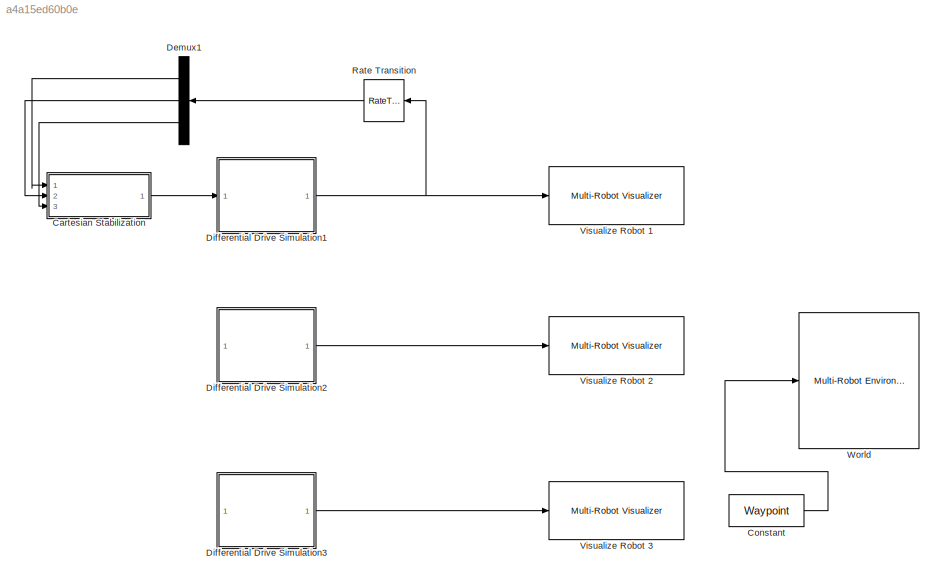
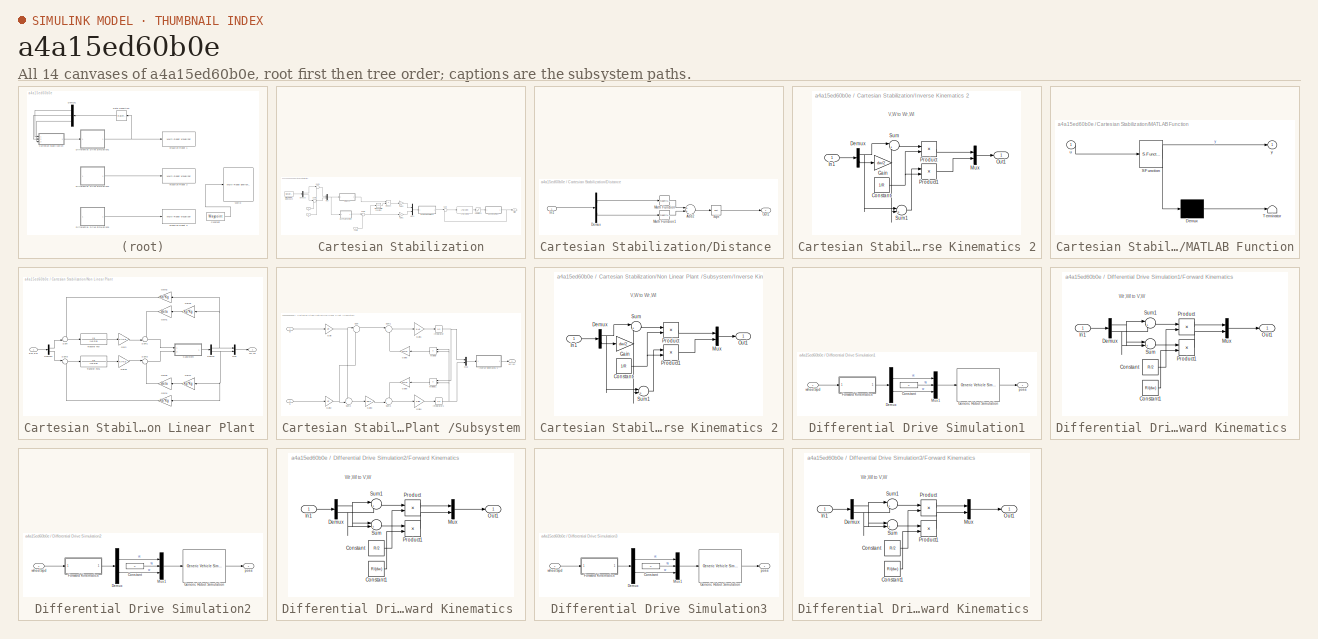
[diagram: thumbnail index - all 14 canvases of the model, root first then tree order]
MODEL slx_a4a15ed60b0e
KIND model
CONFIG AbsTol = auto
CONFIG EnableMultiTasking = off
CONFIG FixedStep = sampleTime
CONFIG MaxStep = auto
CONFIG MinStep = auto
CONFIG PreLoadFcn = % Simulation parameters\nload exampleMap\nsampleTime = 0.05;\n\n% Robot parameters\nwheelRadius = 0.025;\nrobotRadius = 0.35;\n\n% Lidar parameters\nsensorOffset = [0,0];\nscanAngles = linspace(-pi/2,pi/2,9)';\nmaxRange = 5;
CONFIG RelTol = 1e-3
CONFIG SampleTimeConstraint = Unconstrained
CONFIG Solver = VariableStepAuto
CONFIG SolverName = VariableStepAuto
CONFIG StartTime = 0.0
CONFIG StopTime = inf
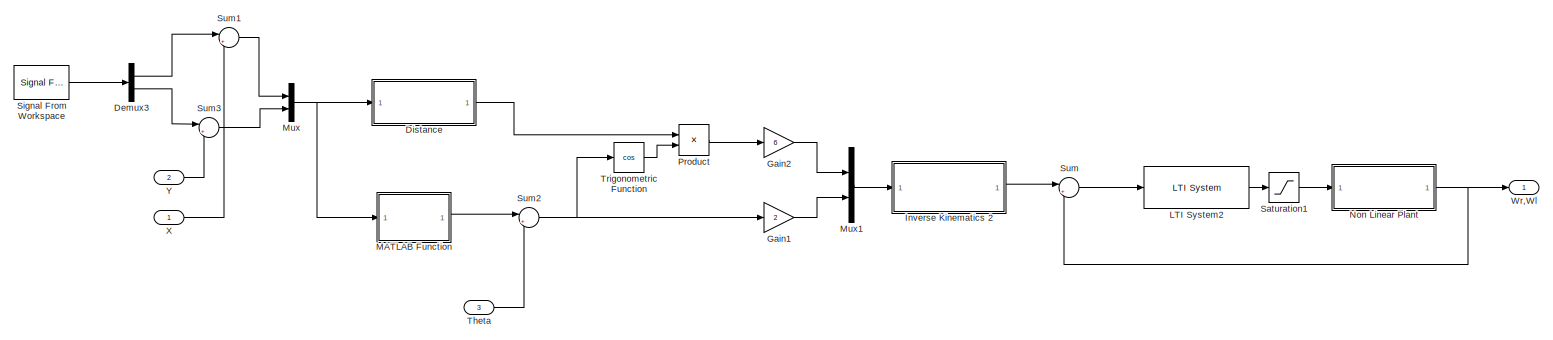
[diagram: Cartesian Stabilization - part 1/1, most of the canvas]
BLOCK [SubSystem] Cartesian Stabilization
  Ports = [3, 1]
  RequestExecContextInheritance = off
BLOCK [Demux] Cartesian Stabilization/Demux3
  DisplayOption = bar
  Outputs = 2
  Ports = [1, 2]
BLOCK [SubSystem] Cartesian Stabilization/Distance 
  Ports = [1, 1]
  RequestExecContextInheritance = off
BLOCK [Sum] Cartesian Stabilization/Distance /Add2
  InputSameDT = off
  OutDataTypeStr = Inherit: Inherit via internal rule
  Ports = [2, 1]
  SaturateOnIntegerOverflow = off
BLOCK [Demux] Cartesian Stabilization/Distance /Demux
  DisplayOption = bar
  Outputs = 2
  Ports = [1, 2]
BLOCK [Inport] Cartesian Stabilization/Distance /In1
  IconDisplay = Port number
BLOCK [Math] Cartesian Stabilization/Distance /Math Function
  Operator = magnitude^2
  Ports = [1, 1]
BLOCK [Math] Cartesian Stabilization/Distance /Math Function1
  Operator = magnitude^2
  Ports = [1, 1]
BLOCK [Outport] Cartesian Stabilization/Distance /Out1
  IconDisplay = Port number
BLOCK [Sqrt] Cartesian Stabilization/Distance /Sqrt
BLOCK [Gain] Cartesian Stabilization/Gain1
  Gain = 2
  OutDataTypeStr = Inherit: Inherit via internal rule
  ParamDataTypeStr = Inherit: Inherit via internal rule
  SaturateOnIntegerOverflow = off
BLOCK [Gain] Cartesian Stabilization/Gain2
  Gain = 6
  OutDataTypeStr = Inherit: Inherit via internal rule
  ParamDataTypeStr = Inherit: Inherit via internal rule
  SaturateOnIntegerOverflow = off
BLOCK [SubSystem] Cartesian Stabilization/Inverse Kinematics 2
  Ports = [1, 1]
  RequestExecContextInheritance = off
BLOCK [Constant] Cartesian Stabilization/Inverse Kinematics 2/Constant
  Value = 1/R
BLOCK [Demux] Cartesian Stabilization/Inverse Kinematics 2/Demux
  DisplayOption = bar
  Outputs = 2
  Ports = [1, 2]
BLOCK [Gain] Cartesian Stabilization/Inverse Kinematics 2/Gain
  Gain = dw/2
  OutDataTypeStr = Inherit: Inherit via internal rule
  ParamDataTypeStr = Inherit: Inherit via internal rule
  SaturateOnIntegerOverflow = off
BLOCK [Inport] Cartesian Stabilization/Inverse Kinematics 2/In1
  IconDisplay = Port number
BLOCK [Mux] Cartesian Stabilization/Inverse Kinematics 2/Mux
  DisplayOption = bar
  Inputs = 2
  Ports = [2, 1]
BLOCK [Outport] Cartesian Stabilization/Inverse Kinematics 2/Out1
  IconDisplay = Port number
BLOCK [Product] Cartesian Stabilization/Inverse Kinematics 2/Product
  InputSameDT = off
  OutDataTypeStr = Inherit: Inherit via internal rule
  Ports = [2, 1]
  RndMeth = Floor
  SaturateOnIntegerOverflow = off
BLOCK [Product] Cartesian Stabilization/Inverse Kinematics 2/Product1
  InputSameDT = off
  OutDataTypeStr = Inherit: Inherit via internal rule
  Ports = [2, 1]
  RndMeth = Floor
  SaturateOnIntegerOverflow = off
BLOCK [Sum] Cartesian Stabilization/Inverse Kinematics 2/Sum
  IconShape = round
  InputSameDT = off
  Inputs = |++
  OutDataTypeStr = Inherit: Inherit via internal rule
  Ports = [2, 1]
  SaturateOnIntegerOverflow = off
BLOCK [Sum] Cartesian Stabilization/Inverse Kinematics 2/Sum1
  IconShape = round
  InputSameDT = off
  Inputs = |+-
  OutDataTypeStr = Inherit: Inherit via internal rule
  Ports = [2, 1]
  SaturateOnIntegerOverflow = off
BLOCK [Reference] Cartesian Stabilization/LTI System2  REF=cstblocks/LTI System
  Ports = [1, 1]
  SourceBlock = cstblocks/LTI System
  SourceProductBaseCode = CT
  SourceProductName = Control System Toolbox
  SourceType = LTI Block
BLOCK [SubSystem] Cartesian Stabilization/MATLAB Function
  ErrorFcn = Stateflow.Translate.translate
  PermitHierarchicalResolution = ExplicitOnly
  Ports = [1, 1]
  RequestExecContextInheritance = off
  SFBlockType = MATLAB Function
  TreatAsAtomicUnit = on
BLOCK [Demux] Cartesian Stabilization/MATLAB Function/ Demux 
  Outputs = 1
  Ports = [1, 1]
BLOCK [S-Function] Cartesian Stabilization/MATLAB Function/ SFunction 
  EnableBusSupport = on
  FunctionName = sf_sfun
  PortCounts = [1 2]
  Ports = [1, 2]
  SFcnIsStateOwnerBlock = off
  SFunctionDeploymentMode = off
  Tag = Stateflow S-Function Multi_Robot_MPC_Adaptive 2
BLOCK [Terminator] Cartesian Stabilization/MATLAB Function/ Terminator 
BLOCK [Inport] Cartesian Stabilization/MATLAB Function/u
  IconDisplay = Port number
BLOCK [Outport] Cartesian Stabilization/MATLAB Function/y
  IconDisplay = Port number
BLOCK [Mux] Cartesian Stabilization/Mux
  DisplayOption = bar
  Inputs = 2
  Ports = [2, 1]
BLOCK [Mux] Cartesian Stabilization/Mux1
  DisplayOption = bar
  Inputs = 2
  Ports = [2, 1]
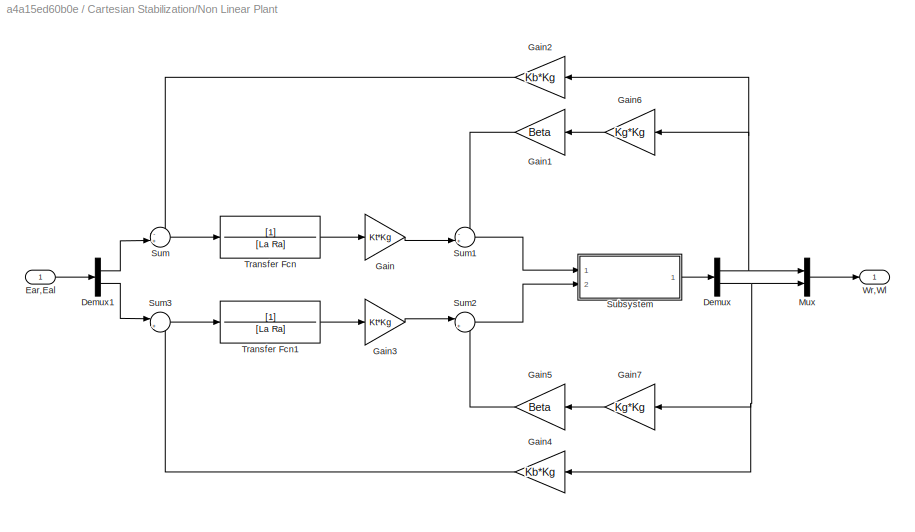
BLOCK [SubSystem] Cartesian Stabilization/Non Linear Plant 
  Ports = [1, 1]
  RequestExecContextInheritance = off
BLOCK [Demux] Cartesian Stabilization/Non Linear Plant /Demux
  DisplayOption = bar
  Outputs = 2
  Ports = [1, 2]
BLOCK [Demux] Cartesian Stabilization/Non Linear Plant /Demux1
  DisplayOption = bar
  Outputs = 2
  Ports = [1, 2]
BLOCK [Inport] Cartesian Stabilization/Non Linear Plant /Ear,Eal
  IconDisplay = Port number
BLOCK [Gain] Cartesian Stabilization/Non Linear Plant /Gain
  Gain = Kt*Kg
  OutDataTypeStr = Inherit: Inherit via internal rule
  ParamDataTypeStr = Inherit: Inherit via internal rule
  SaturateOnIntegerOverflow = off
BLOCK [Gain] Cartesian Stabilization/Non Linear Plant /Gain1
  Gain = Beta
  OutDataTypeStr = Inherit: Inherit via internal rule
  ParamDataTypeStr = Inherit: Inherit via internal rule
  SaturateOnIntegerOverflow = off
BLOCK [Gain] Cartesian Stabilization/Non Linear Plant /Gain2
  Gain = Kb*Kg
  OutDataTypeStr = Inherit: Inherit via internal rule
  ParamDataTypeStr = Inherit: Inherit via internal rule
  SaturateOnIntegerOverflow = off
BLOCK [Gain] Cartesian Stabilization/Non Linear Plant /Gain3
  Gain = Kt*Kg
  OutDataTypeStr = Inherit: Inherit via internal rule
  ParamDataTypeStr = Inherit: Inherit via internal rule
  SaturateOnIntegerOverflow = off
BLOCK [Gain] Cartesian Stabilization/Non Linear Plant /Gain4
  Gain = Kb*Kg
  OutDataTypeStr = Inherit: Inherit via internal rule
  ParamDataTypeStr = Inherit: Inherit via internal rule
  SaturateOnIntegerOverflow = off
BLOCK [Gain] Cartesian Stabilization/Non Linear Plant /Gain5
  Gain = Beta
  OutDataTypeStr = Inherit: Inherit via internal rule
  ParamDataTypeStr = Inherit: Inherit via internal rule
  SaturateOnIntegerOverflow = off
BLOCK [Gain] Cartesian Stabilization/Non Linear Plant /Gain6
  Gain = Kg*Kg
  OutDataTypeStr = Inherit: Inherit via internal rule
  ParamDataTypeStr = Inherit: Inherit via internal rule
  SaturateOnIntegerOverflow = off
BLOCK [Gain] Cartesian Stabilization/Non Linear Plant /Gain7
  Gain = Kg*Kg
  OutDataTypeStr = Inherit: Inherit via internal rule
  ParamDataTypeStr = Inherit: Inherit via internal rule
  SaturateOnIntegerOverflow = off
BLOCK [Mux] Cartesian Stabilization/Non Linear Plant /Mux
  DisplayOption = bar
  Inputs = 2
  Ports = [2, 1]
BLOCK [SubSystem] Cartesian Stabilization/Non Linear Plant /Subsystem
  Ports = [2, 1]
  RequestExecContextInheritance = off
BLOCK [Gain] Cartesian Stabilization/Non Linear Plant /Subsystem/Gain
  Gain = 1/R
  OutDataTypeStr = Inherit: Inherit via internal rule
  ParamDataTypeStr = Inherit: Inherit via internal rule
  SaturateOnIntegerOverflow = off
BLOCK [Gain] Cartesian Stabilization/Non Linear Plant /Subsystem/Gain1
  Gain = 1/Ad
  OutDataTypeStr = Inherit: Inherit via internal rule
  ParamDataTypeStr = Inherit: Inherit via internal rule
  SaturateOnIntegerOverflow = off
BLOCK [Gain] Cartesian Stabilization/Non Linear Plant /Subsystem/Gain2
  Gain = 1/R
  OutDataTypeStr = Inherit: Inherit via internal rule
  ParamDataTypeStr = Inherit: Inherit via internal rule
  SaturateOnIntegerOverflow = off
BLOCK [Gain] Cartesian Stabilization/Non Linear Plant /Subsystem/Gain3
  Gain = dw/2
  OutDataTypeStr = Inherit: Inherit via internal rule
  ParamDataTypeStr = Inherit: Inherit via internal rule
  SaturateOnIntegerOverflow = off
BLOCK [Gain] Cartesian Stabilization/Non Linear Plant /Subsystem/Gain4
  Gain = 1/Bd
  OutDataTypeStr = Inherit: Inherit via internal rule
  ParamDataTypeStr = Inherit: Inherit via internal rule
  SaturateOnIntegerOverflow = off
BLOCK [Gain] Cartesian Stabilization/Non Linear Plant /Subsystem/Gain5
  Gain = mc*d
  OutDataTypeStr = Inherit: Inherit via internal rule
  ParamDataTypeStr = Inherit: Inherit via internal rule
  SaturateOnIntegerOverflow = off
BLOCK [Gain] Cartesian Stabilization/Non Linear Plant /Subsystem/Gain6
  Gain = mc*d
  OutDataTypeStr = Inherit: Inherit via internal rule
  ParamDataTypeStr = Inherit: Inherit via internal rule
  SaturateOnIntegerOverflow = off
BLOCK [Integrator] Cartesian Stabilization/Non Linear Plant /Subsystem/Integrator
  Ports = [1, 1]
BLOCK [Integrator] Cartesian Stabilization/Non Linear Plant /Subsystem/Integrator1
  Ports = [1, 1]
BLOCK [SubSystem] Cartesian Stabilization/Non Linear Plant /Subsystem/Inverse Kinematics 2
  Ports = [1, 1]
  RequestExecContextInheritance = off
BLOCK [Constant] Cartesian Stabilization/Non Linear Plant /Subsystem/Inverse Kinematics 2/Constant
  Value = 1/R
BLOCK [Demux] Cartesian Stabilization/Non Linear Plant /Subsystem/Inverse Kinematics 2/Demux
  DisplayOption = bar
  Outputs = 2
  Ports = [1, 2]
BLOCK [Gain] Cartesian Stabilization/Non Linear Plant /Subsystem/Inverse Kinematics 2/Gain
  Gain = dw/2
  OutDataTypeStr = Inherit: Inherit via internal rule
  ParamDataTypeStr = Inherit: Inherit via internal rule
  SaturateOnIntegerOverflow = off
BLOCK [Inport] Cartesian Stabilization/Non Linear Plant /Subsystem/Inverse Kinematics 2/In1
  IconDisplay = Port number
BLOCK [Mux] Cartesian Stabilization/Non Linear Plant /Subsystem/Inverse Kinematics 2/Mux
  DisplayOption = bar
  Inputs = 2
  Ports = [2, 1]
BLOCK [Outport] Cartesian Stabilization/Non Linear Plant /Subsystem/Inverse Kinematics 2/Out1
  IconDisplay = Port number
BLOCK [Product] Cartesian Stabilization/Non Linear Plant /Subsystem/Inverse Kinematics 2/Product
  InputSameDT = off
  OutDataTypeStr = Inherit: Inherit via internal rule
  Ports = [2, 1]
  RndMeth = Floor
  SaturateOnIntegerOverflow = off
BLOCK [Product] Cartesian Stabilization/Non Linear Plant /Subsystem/Inverse Kinematics 2/Product1
  InputSameDT = off
  OutDataTypeStr = Inherit: Inherit via internal rule
  Ports = [2, 1]
  RndMeth = Floor
  SaturateOnIntegerOverflow = off
BLOCK [Sum] Cartesian Stabilization/Non Linear Plant /Subsystem/Inverse Kinematics 2/Sum
  IconShape = round
  InputSameDT = off
  Inputs = |++
  OutDataTypeStr = Inherit: Inherit via internal rule
  Ports = [2, 1]
  SaturateOnIntegerOverflow = off
BLOCK [Sum] Cartesian Stabilization/Non Linear Plant /Subsystem/Inverse Kinematics 2/Sum1
  IconShape = round
  InputSameDT = off
  Inputs = |+-
  OutDataTypeStr = Inherit: Inherit via internal rule
  Ports = [2, 1]
  SaturateOnIntegerOverflow = off
BLOCK [Product] Cartesian Stabilization/Non Linear Plant /Subsystem/Multiply
  InputSameDT = off
  OutDataTypeStr = Inherit: Inherit via internal rule
  Ports = [2, 1]
  RndMeth = Floor
  SaturateOnIntegerOverflow = off
BLOCK [Product] Cartesian Stabilization/Non Linear Plant /Subsystem/Multiply1
  InputSameDT = off
  OutDataTypeStr = Inherit: Inherit via internal rule
  Ports = [2, 1]
  RndMeth = Floor
  SaturateOnIntegerOverflow = off
BLOCK [Mux] Cartesian Stabilization/Non Linear Plant /Subsystem/Mux
  DisplayOption = bar
  Inputs = 2
  Ports = [2, 1]
BLOCK [Sum] Cartesian Stabilization/Non Linear Plant /Subsystem/Sum
  IconShape = round
  InputSameDT = off
  Inputs = |++
  OutDataTypeStr = Inherit: Inherit via internal rule
  Ports = [2, 1]
  SaturateOnIntegerOverflow = off
BLOCK [Sum] Cartesian Stabilization/Non Linear Plant /Subsystem/Sum1
  IconShape = round
  InputSameDT = off
  Inputs = |++
  OutDataTypeStr = Inherit: Inherit via internal rule
  Ports = [2, 1]
  SaturateOnIntegerOverflow = off
BLOCK [Sum] Cartesian Stabilization/Non Linear Plant /Subsystem/Sum2
  IconShape = round
  InputSameDT = off
  Inputs = +-|
  OutDataTypeStr = Inherit: Inherit via internal rule
  Ports = [2, 1]
  SaturateOnIntegerOverflow = off
BLOCK [Sum] Cartesian Stabilization/Non Linear Plant /Subsystem/Sum3
  IconShape = round
  InputSameDT = off
  Inputs = -+|
  OutDataTypeStr = Inherit: Inherit via internal rule
  Ports = [2, 1]
  SaturateOnIntegerOverflow = off
BLOCK [Inport] Cartesian Stabilization/Non Linear Plant /Subsystem/Tl
  IconDisplay = Port number
  Port = 2
BLOCK [Inport] Cartesian Stabilization/Non Linear Plant /Subsystem/Tr
  IconDisplay = Port number and signal name
BLOCK [Outport] Cartesian Stabilization/Non Linear Plant /Subsystem/Wr,Wl
  IconDisplay = Port number
BLOCK [Sum] Cartesian Stabilization/Non Linear Plant /Sum
  IconShape = round
  InputSameDT = off
  Inputs = -+|
  OutDataTypeStr = Inherit: Inherit via internal rule
  Ports = [2, 1]
  SaturateOnIntegerOverflow = off
BLOCK [Sum] Cartesian Stabilization/Non Linear Plant /Sum1
  IconShape = round
  InputSameDT = off
  Inputs = -+|
  OutDataTypeStr = Inherit: Inherit via internal rule
  Ports = [2, 1]
  SaturateOnIntegerOverflow = off
BLOCK [Sum] Cartesian Stabilization/Non Linear Plant /Sum2
  IconShape = round
  InputSameDT = off
  Inputs = |+-
  OutDataTypeStr = Inherit: Inherit via internal rule
  Ports = [2, 1]
  SaturateOnIntegerOverflow = off
BLOCK [Sum] Cartesian Stabilization/Non Linear Plant /Sum3
  IconShape = round
  InputSameDT = off
  Inputs = |+-
  OutDataTypeStr = Inherit: Inherit via internal rule
  Ports = [2, 1]
  SaturateOnIntegerOverflow = off
BLOCK [TransferFcn] Cartesian Stabilization/Non Linear Plant /Transfer Fcn
  Denominator = [La Ra]
BLOCK [TransferFcn] Cartesian Stabilization/Non Linear Plant /Transfer Fcn1
  Denominator = [La Ra]
BLOCK [Outport] Cartesian Stabilization/Non Linear Plant /Wr,Wl
  IconDisplay = Port number
BLOCK [Product] Cartesian Stabilization/Product
  InputSameDT = off
  OutDataTypeStr = Inherit: Inherit via internal rule
  Ports = [2, 1]
  RndMeth = Floor
  SaturateOnIntegerOverflow = off
BLOCK [Saturate] Cartesian Stabilization/Saturation1
  InputPortMap = u0
  LowerLimit = -30
  Ports = [1, 1]
  UpperLimit = 30
BLOCK [Reference] Cartesian Stabilization/Signal From Workspace  REF=dspsrcs4/Signal From
Workspace
  Ports = [0, 1]
  SourceBlock = dspsrcs4/Signal From\nWorkspace
  SourceProductBaseCode = DS
  SourceProductName = DSP System Toolbox
  SourceType = Signal From Workspace
BLOCK [Sum] Cartesian Stabilization/Sum
  IconShape = round
  InputSameDT = off
  Inputs = |+-
  OutDataTypeStr = Inherit: Inherit via internal rule
  Ports = [2, 1]
  SaturateOnIntegerOverflow = off
BLOCK [Sum] Cartesian Stabilization/Sum1
  IconShape = round
  InputSameDT = off
  Inputs = |+-
  OutDataTypeStr = Inherit: Inherit via internal rule
  Ports = [2, 1]
  SaturateOnIntegerOverflow = off
BLOCK [Sum] Cartesian Stabilization/Sum2
  IconShape = round
  InputSameDT = off
  Inputs = |+-
  OutDataTypeStr = Inherit: Inherit via internal rule
  Ports = [2, 1]
  SaturateOnIntegerOverflow = off
BLOCK [Sum] Cartesian Stabilization/Sum3
  IconShape = round
  InputSameDT = off
  Inputs = |+-
  OutDataTypeStr = Inherit: Inherit via internal rule
  Ports = [2, 1]
  SaturateOnIntegerOverflow = off
BLOCK [Inport] Cartesian Stabilization/Theta
  IconDisplay = Port number
  Port = 3
BLOCK [Trigonometry] Cartesian Stabilization/Trigonometric Function
  Operator = cos
  Ports = [1, 1]
BLOCK [Outport] Cartesian Stabilization/Wr,Wl
  IconDisplay = Port number
BLOCK [Inport] Cartesian Stabilization/X
  IconDisplay = Port number
BLOCK [Inport] Cartesian Stabilization/Y
  IconDisplay = Port number
  Port = 2
BLOCK [Constant] Constant
  SampleTime = sampleTime
  Value = Waypoint
BLOCK [Demux] Demux1
  DisplayOption = bar
  Outputs = 3
  Ports = [1, 3]
BLOCK [SubSystem] Differential Drive Simulation1
  AncestorBlock = mobileRoboticsLib/Kinematic Models/Differential Drive/Differential Drive Simulation
  OverrideUsingVariant = mode==2
  Ports = [1, 1]
  RequestExecContextInheritance = off
BLOCK [Constant] Differential Drive Simulation1/Constant
  Value = 0
BLOCK [Demux] Differential Drive Simulation1/Demux
  DisplayOption = bar
  Outputs = 2
  Ports = [1, 2]
BLOCK [SubSystem] Differential Drive Simulation1/Forward Kinematics 
  Ports = [1, 1]
  RequestExecContextInheritance = off
BLOCK [Constant] Differential Drive Simulation1/Forward Kinematics /Constant
  Value = R/2
BLOCK [Constant] Differential Drive Simulation1/Forward Kinematics /Constant1
  Value = R/(dw)
BLOCK [Demux] Differential Drive Simulation1/Forward Kinematics /Demux
  DisplayOption = bar
  Outputs = 2
  Ports = [1, 2]
BLOCK [Inport] Differential Drive Simulation1/Forward Kinematics /In1
  IconDisplay = Port number
BLOCK [Mux] Differential Drive Simulation1/Forward Kinematics /Mux
  DisplayOption = bar
  Inputs = 2
  Ports = [2, 1]
BLOCK [Outport] Differential Drive Simulation1/Forward Kinematics /Out1
  IconDisplay = Port number
BLOCK [Product] Differential Drive Simulation1/Forward Kinematics /Product
  InputSameDT = off
  OutDataTypeStr = Inherit: Inherit via internal rule
  Ports = [2, 1]
  RndMeth = Floor
  SaturateOnIntegerOverflow = off
BLOCK [Product] Differential Drive Simulation1/Forward Kinematics /Product1
  InputSameDT = off
  OutDataTypeStr = Inherit: Inherit via internal rule
  Ports = [2, 1]
  RndMeth = Floor
  SaturateOnIntegerOverflow = off
BLOCK [Sum] Differential Drive Simulation1/Forward Kinematics /Sum
  IconShape = round
  InputSameDT = off
  Inputs = |+-
  OutDataTypeStr = Inherit: Inherit via internal rule
  Ports = [2, 1]
  SaturateOnIntegerOverflow = off
BLOCK [Sum] Differential Drive Simulation1/Forward Kinematics /Sum1
  IconShape = round
  InputSameDT = off
  Inputs = |++
  OutDataTypeStr = Inherit: Inherit via internal rule
  Ports = [2, 1]
  SaturateOnIntegerOverflow = off
BLOCK [Reference] Differential Drive Simulation1/Generic Robot Simulation  REF=mobileRoboticsLib/Utilities/Generic Vehicle Simulation
  Ports = [1, 1]
  SourceBlock = mobileRoboticsLib/Utilities/Generic Vehicle Simulation
  SourceProductName = Mobile Robotics Simulation Toolbox
  SourceType = Generic Vehicle Simulation
BLOCK [Mux] Differential Drive Simulation1/Mux1
  DisplayOption = bar
  Inputs = 3
  Ports = [3, 1]
BLOCK [Outport] Differential Drive Simulation1/pose
  IconDisplay = Port number
BLOCK [Inport] Differential Drive Simulation1/wheelSpd
  IconDisplay = Port number
BLOCK [SubSystem] Differential Drive Simulation2
  AncestorBlock = mobileRoboticsLib/Kinematic Models/Differential Drive/Differential Drive Simulation
  OverrideUsingVariant = mode==2
  Ports = [1, 1]
  RequestExecContextInheritance = off
BLOCK [Constant] Differential Drive Simulation2/Constant
  Value = 0
BLOCK [Demux] Differential Drive Simulation2/Demux
  DisplayOption = bar
  Outputs = 2
  Ports = [1, 2]
BLOCK [SubSystem] Differential Drive Simulation2/Forward Kinematics 
  Ports = [1, 1]
  RequestExecContextInheritance = off
BLOCK [Constant] Differential Drive Simulation2/Forward Kinematics /Constant
  Value = R/2
BLOCK [Constant] Differential Drive Simulation2/Forward Kinematics /Constant1
  Value = R/(dw)
BLOCK [Demux] Differential Drive Simulation2/Forward Kinematics /Demux
  DisplayOption = bar
  Outputs = 2
  Ports = [1, 2]
BLOCK [Inport] Differential Drive Simulation2/Forward Kinematics /In1
  IconDisplay = Port number
BLOCK [Mux] Differential Drive Simulation2/Forward Kinematics /Mux
  DisplayOption = bar
  Inputs = 2
  Ports = [2, 1]
BLOCK [Outport] Differential Drive Simulation2/Forward Kinematics /Out1
  IconDisplay = Port number
BLOCK [Product] Differential Drive Simulation2/Forward Kinematics /Product
  InputSameDT = off
  OutDataTypeStr = Inherit: Inherit via internal rule
  Ports = [2, 1]
  RndMeth = Floor
  SaturateOnIntegerOverflow = off
BLOCK [Product] Differential Drive Simulation2/Forward Kinematics /Product1
  InputSameDT = off
  OutDataTypeStr = Inherit: Inherit via internal rule
  Ports = [2, 1]
  RndMeth = Floor
  SaturateOnIntegerOverflow = off
BLOCK [Sum] Differential Drive Simulation2/Forward Kinematics /Sum
  IconShape = round
  InputSameDT = off
  Inputs = |+-
  OutDataTypeStr = Inherit: Inherit via internal rule
  Ports = [2, 1]
  SaturateOnIntegerOverflow = off
BLOCK [Sum] Differential Drive Simulation2/Forward Kinematics /Sum1
  IconShape = round
  InputSameDT = off
  Inputs = |++
  OutDataTypeStr = Inherit: Inherit via internal rule
  Ports = [2, 1]
  SaturateOnIntegerOverflow = off
BLOCK [Reference] Differential Drive Simulation2/Generic Robot Simulation  REF=mobileRoboticsLib/Utilities/Generic Vehicle Simulation
  Ports = [1, 1]
  SourceBlock = mobileRoboticsLib/Utilities/Generic Vehicle Simulation
  SourceProductName = Mobile Robotics Simulation Toolbox
  SourceType = Generic Vehicle Simulation
BLOCK [Mux] Differential Drive Simulation2/Mux1
  DisplayOption = bar
  Inputs = 3
  Ports = [3, 1]
BLOCK [Outport] Differential Drive Simulation2/pose
  IconDisplay = Port number
BLOCK [Inport] Differential Drive Simulation2/wheelSpd
  IconDisplay = Port number
BLOCK [SubSystem] Differential Drive Simulation3
  AncestorBlock = mobileRoboticsLib/Kinematic Models/Differential Drive/Differential Drive Simulation
  OverrideUsingVariant = mode==2
  Ports = [1, 1]
  RequestExecContextInheritance = off
BLOCK [Constant] Differential Drive Simulation3/Constant
  Value = 0
BLOCK [Demux] Differential Drive Simulation3/Demux
  DisplayOption = bar
  Outputs = 2
  Ports = [1, 2]
BLOCK [SubSystem] Differential Drive Simulation3/Forward Kinematics 
  Ports = [1, 1]
  RequestExecContextInheritance = off
BLOCK [Constant] Differential Drive Simulation3/Forward Kinematics /Constant
  Value = R/2
BLOCK [Constant] Differential Drive Simulation3/Forward Kinematics /Constant1
  Value = R/(dw)
BLOCK [Demux] Differential Drive Simulation3/Forward Kinematics /Demux
  DisplayOption = bar
  Outputs = 2
  Ports = [1, 2]
BLOCK [Inport] Differential Drive Simulation3/Forward Kinematics /In1
  IconDisplay = Port number
BLOCK [Mux] Differential Drive Simulation3/Forward Kinematics /Mux
  DisplayOption = bar
  Inputs = 2
  Ports = [2, 1]
BLOCK [Outport] Differential Drive Simulation3/Forward Kinematics /Out1
  IconDisplay = Port number
BLOCK [Product] Differential Drive Simulation3/Forward Kinematics /Product
  InputSameDT = off
  OutDataTypeStr = Inherit: Inherit via internal rule
  Ports = [2, 1]
  RndMeth = Floor
  SaturateOnIntegerOverflow = off
BLOCK [Product] Differential Drive Simulation3/Forward Kinematics /Product1
  InputSameDT = off
  OutDataTypeStr = Inherit: Inherit via internal rule
  Ports = [2, 1]
  RndMeth = Floor
  SaturateOnIntegerOverflow = off
BLOCK [Sum] Differential Drive Simulation3/Forward Kinematics /Sum
  IconShape = round
  InputSameDT = off
  Inputs = |+-
  OutDataTypeStr = Inherit: Inherit via internal rule
  Ports = [2, 1]
  SaturateOnIntegerOverflow = off
BLOCK [Sum] Differential Drive Simulation3/Forward Kinematics /Sum1
  IconShape = round
  InputSameDT = off
  Inputs = |++
  OutDataTypeStr = Inherit: Inherit via internal rule
  Ports = [2, 1]
  SaturateOnIntegerOverflow = off
BLOCK [Reference] Differential Drive Simulation3/Generic Robot Simulation  REF=mobileRoboticsLib/Utilities/Generic Vehicle Simulation
  Ports = [1, 1]
  SourceBlock = mobileRoboticsLib/Utilities/Generic Vehicle Simulation
  SourceProductName = Mobile Robotics Simulation Toolbox
  SourceType = Generic Vehicle Simulation
BLOCK [Mux] Differential Drive Simulation3/Mux1
  DisplayOption = bar
  Inputs = 3
  Ports = [3, 1]
BLOCK [Outport] Differential Drive Simulation3/pose
  IconDisplay = Port number
BLOCK [Inport] Differential Drive Simulation3/wheelSpd
  IconDisplay = Port number
BLOCK [RateTransition] Rate Transition
  OutPortSampleTime = 0.01
BLOCK [Reference] Visualize Robot 1  REF=mobileRoboticsLib/Environments/Multi-Robot Visualizer
  Ports = [1]
  SourceBlock = mobileRoboticsLib/Environments/Multi-Robot Visualizer
  SourceProductName = Mobile Robotics Simulation Toolbox
  SourceType = Multi-Robot Visualizer
BLOCK [Reference] Visualize Robot 2  REF=mobileRoboticsLib/Environments/Multi-Robot Visualizer
  Ports = [1]
  SourceBlock = mobileRoboticsLib/Environments/Multi-Robot Visualizer
  SourceProductName = Mobile Robotics Simulation Toolbox
  SourceType = Multi-Robot Visualizer
BLOCK [Reference] Visualize Robot 3  REF=mobileRoboticsLib/Environments/Multi-Robot Visualizer
  Ports = [1]
  SourceBlock = mobileRoboticsLib/Environments/Multi-Robot Visualizer
  SourceProductName = Mobile Robotics Simulation Toolbox
  SourceType = Multi-Robot Visualizer
BLOCK [Reference] World  REF=mobileRoboticsLib/Environments/Multi-Robot Environment
  Ports = [1]
  SourceBlock = mobileRoboticsLib/Environments/Multi-Robot Environment
  SourceProductName = Mobile Robotics Simulation Toolbox
  SourceType = Multi-Robot Environment
ANNOTATION Cartesian Stabilization/Inverse Kinematics 2: V,W to Wr,Wl
ANNOTATION Cartesian Stabilization/Non Linear Plant /Subsystem/Inverse Kinematics 2: V,W to Wr,Wl
ANNOTATION Differential Drive Simulation1/Forward Kinematics : Wr,Wl to V,W
ANNOTATION Differential Drive Simulation2/Forward Kinematics : Wr,Wl to V,W
ANNOTATION Differential Drive Simulation3/Forward Kinematics : Wr,Wl to V,W
LINE Cartesian Stabilization/Demux3:1 -> Cartesian Stabilization/Sum1:1
LINE Cartesian Stabilization/Demux3:2 -> Cartesian Stabilization/Sum3:1
LINE Cartesian Stabilization/Distance /Add2:1 -> Cartesian Stabilization/Distance /Sqrt:1
LINE Cartesian Stabilization/Distance /Demux:1 -> Cartesian Stabilization/Distance /Math Function:1
LINE Cartesian Stabilization/Distance /Demux:2 -> Cartesian Stabilization/Distance /Math Function1:1
LINE Cartesian Stabilization/Distance /In1:1 -> Cartesian Stabilization/Distance /Demux:1
LINE Cartesian Stabilization/Distance /Math Function1:1 -> Cartesian Stabilization/Distance /Add2:2
LINE Cartesian Stabilization/Distance /Math Function:1 -> Cartesian Stabilization/Distance /Add2:1
LINE Cartesian Stabilization/Distance /Sqrt:1 -> Cartesian Stabilization/Distance /Out1:1
LINE Cartesian Stabilization/Distance :1 -> Cartesian Stabilization/Product:1
LINE Cartesian Stabilization/Gain1:1 -> Cartesian Stabilization/Mux1:2
LINE Cartesian Stabilization/Gain2:1 -> Cartesian Stabilization/Mux1:1
NET Cartesian Stabilization/Inverse Kinematics 2/Constant:1 -> Cartesian Stabilization/Inverse Kinematics 2/Product1:2, Cartesian Stabilization/Inverse Kinematics 2/Product:2
NET Cartesian Stabilization/Inverse Kinematics 2/Demux:1 -> Cartesian Stabilization/Inverse Kinematics 2/Sum1:1, Cartesian Stabilization/Inverse Kinematics 2/Sum:1
LINE Cartesian Stabilization/Inverse Kinematics 2/Demux:2 -> Cartesian Stabilization/Inverse Kinematics 2/Gain:1
NET Cartesian Stabilization/Inverse Kinematics 2/Gain:1 -> Cartesian Stabilization/Inverse Kinematics 2/Sum1:2, Cartesian Stabilization/Inverse Kinematics 2/Sum:2
LINE Cartesian Stabilization/Inverse Kinematics 2/In1:1 -> Cartesian Stabilization/Inverse Kinematics 2/Demux:1
LINE Cartesian Stabilization/Inverse Kinematics 2/Mux:1 -> Cartesian Stabilization/Inverse Kinematics 2/Out1:1
LINE Cartesian Stabilization/Inverse Kinematics 2/Product1:1 -> Cartesian Stabilization/Inverse Kinematics 2/Mux:2
LINE Cartesian Stabilization/Inverse Kinematics 2/Product:1 -> Cartesian Stabilization/Inverse Kinematics 2/Mux:1
LINE Cartesian Stabilization/Inverse Kinematics 2/Sum1:1 -> Cartesian Stabilization/Inverse Kinematics 2/Product1:1
LINE Cartesian Stabilization/Inverse Kinematics 2/Sum:1 -> Cartesian Stabilization/Inverse Kinematics 2/Product:1
LINE Cartesian Stabilization/Inverse Kinematics 2:1 -> Cartesian Stabilization/Sum:1
LINE Cartesian Stabilization/LTI System2:1 -> Cartesian Stabilization/Saturation1:1
LINE Cartesian Stabilization/MATLAB Function:1 -> Cartesian Stabilization/Sum2:1
LINE Cartesian Stabilization/Mux1:1 -> Cartesian Stabilization/Inverse Kinematics 2:1
NET Cartesian Stabilization/Mux:1 -> Cartesian Stabilization/Distance :1, Cartesian Stabilization/MATLAB Function:1
LINE Cartesian Stabilization/Non Linear Plant /Demux1:1 -> Cartesian Stabilization/Non Linear Plant /Sum:2
LINE Cartesian Stabilization/Non Linear Plant /Demux1:2 -> Cartesian Stabilization/Non Linear Plant /Sum3:1
NET Cartesian Stabilization/Non Linear Plant /Demux:1 -> Cartesian Stabilization/Non Linear Plant /Gain2:1, Cartesian Stabilization/Non Linear Plant /Gain6:1, Cartesian Stabilization/Non Linear Plant /Mux:1
NET Cartesian Stabilization/Non Linear Plant /Demux:2 -> Cartesian Stabilization/Non Linear Plant /Gain4:1, Cartesian Stabilization/Non Linear Plant /Gain7:1, Cartesian Stabilization/Non Linear Plant /Mux:2
LINE Cartesian Stabilization/Non Linear Plant /Ear,Eal:1 -> Cartesian Stabilization/Non Linear Plant /Demux1:1
LINE Cartesian Stabilization/Non Linear Plant /Gain1:1 -> Cartesian Stabilization/Non Linear Plant /Sum1:1
LINE Cartesian Stabilization/Non Linear Plant /Gain2:1 -> Cartesian Stabilization/Non Linear Plant /Sum:1
LINE Cartesian Stabilization/Non Linear Plant /Gain3:1 -> Cartesian Stabilization/Non Linear Plant /Sum2:1
LINE Cartesian Stabilization/Non Linear Plant /Gain4:1 -> Cartesian Stabilization/Non Linear Plant /Sum3:2
LINE Cartesian Stabilization/Non Linear Plant /Gain5:1 -> Cartesian Stabilization/Non Linear Plant /Sum2:2
LINE Cartesian Stabilization/Non Linear Plant /Gain6:1 -> Cartesian Stabilization/Non Linear Plant /Gain1:1
LINE Cartesian Stabilization/Non Linear Plant /Gain7:1 -> Cartesian Stabilization/Non Linear Plant /Gain5:1
LINE Cartesian Stabilization/Non Linear Plant /Gain:1 -> Cartesian Stabilization/Non Linear Plant /Sum1:2
LINE Cartesian Stabilization/Non Linear Plant /Mux:1 -> Cartesian Stabilization/Non Linear Plant /Wr,Wl:1
LINE Cartesian Stabilization/Non Linear Plant /Subsystem/Gain1:1 -> Cartesian Stabilization/Non Linear Plant /Subsystem/Integrator:1
NET Cartesian Stabilization/Non Linear Plant /Subsystem/Gain2:1 -> Cartesian Stabilization/Non Linear Plant /Subsystem/Sum2:2, Cartesian Stabilization/Non Linear Plant /Subsystem/Sum:2
LINE Cartesian Stabilization/Non Linear Plant /Subsystem/Gain3:1 -> Cartesian Stabilization/Non Linear Plant /Subsystem/Sum3:2
LINE Cartesian Stabilization/Non Linear Plant /Subsystem/Gain4:1 -> Cartesian Stabilization/Non Linear Plant /Subsystem/Integrator1:1
LINE Cartesian Stabilization/Non Linear Plant /Subsystem/Gain5:1 -> Cartesian Stabilization/Non Linear Plant /Subsystem/Sum1:2
LINE Cartesian Stabilization/Non Linear Plant /Subsystem/Gain6:1 -> Cartesian Stabilization/Non Linear Plant /Subsystem/Sum3:1
NET Cartesian Stabilization/Non Linear Plant /Subsystem/Gain:1 -> Cartesian Stabilization/Non Linear Plant /Subsystem/Sum2:1, Cartesian Stabilization/Non Linear Plant /Subsystem/Sum:1
NET Cartesian Stabilization/Non Linear Plant /Subsystem/Integrator1:1 -> Cartesian Stabilization/Non Linear Plant /Subsystem/Multiply1:2, Cartesian Stabilization/Non Linear Plant /Subsystem/Multiply:1, Cartesian Stabilization/Non Linear Plant /Subsystem/Multiply:2, Cartesian Stabilization/Non Linear Plant /Subsystem/Mux:2
NET Cartesian Stabilization/Non Linear Plant /Subsystem/Integrator:1 -> Cartesian Stabilization/Non Linear Plant /Subsystem/Multiply1:1, Cartesian Stabilization/Non Linear Plant /Subsystem/Mux:1
NET Cartesian Stabilization/Non Linear Plant /Subsystem/Inverse Kinematics 2/Constant:1 -> Cartesian Stabilization/Non Linear Plant /Subsystem/Inverse Kinematics 2/Product1:2, Cartesian Stabilization/Non Linear Plant /Subsystem/Inverse Kinematics 2/Product:2
NET Cartesian Stabilization/Non Linear Plant /Subsystem/Inverse Kinematics 2/Demux:1 -> Cartesian Stabilization/Non Linear Plant /Subsystem/Inverse Kinematics 2/Sum1:1, Cartesian Stabilization/Non Linear Plant /Subsystem/Inverse Kinematics 2/Sum:1
LINE Cartesian Stabilization/Non Linear Plant /Subsystem/Inverse Kinematics 2/Demux:2 -> Cartesian Stabilization/Non Linear Plant /Subsystem/Inverse Kinematics 2/Gain:1
NET Cartesian Stabilization/Non Linear Plant /Subsystem/Inverse Kinematics 2/Gain:1 -> Cartesian Stabilization/Non Linear Plant /Subsystem/Inverse Kinematics 2/Sum1:2, Cartesian Stabilization/Non Linear Plant /Subsystem/Inverse Kinematics 2/Sum:2
LINE Cartesian Stabilization/Non Linear Plant /Subsystem/Inverse Kinematics 2/In1:1 -> Cartesian Stabilization/Non Linear Plant /Subsystem/Inverse Kinematics 2/Demux:1
LINE Cartesian Stabilization/Non Linear Plant /Subsystem/Inverse Kinematics 2/Mux:1 -> Cartesian Stabilization/Non Linear Plant /Subsystem/Inverse Kinematics 2/Out1:1
LINE Cartesian Stabilization/Non Linear Plant /Subsystem/Inverse Kinematics 2/Product1:1 -> Cartesian Stabilization/Non Linear Plant /Subsystem/Inverse Kinematics 2/Mux:2
LINE Cartesian Stabilization/Non Linear Plant /Subsystem/Inverse Kinematics 2/Product:1 -> Cartesian Stabilization/Non Linear Plant /Subsystem/Inverse Kinematics 2/Mux:1
LINE Cartesian Stabilization/Non Linear Plant /Subsystem/Inverse Kinematics 2/Sum1:1 -> Cartesian Stabilization/Non Linear Plant /Subsystem/Inverse Kinematics 2/Product1:1
LINE Cartesian Stabilization/Non Linear Plant /Subsystem/Inverse Kinematics 2/Sum:1 -> Cartesian Stabilization/Non Linear Plant /Subsystem/Inverse Kinematics 2/Product:1
LINE Cartesian Stabilization/Non Linear Plant /Subsystem/Inverse Kinematics 2:1 -> Cartesian Stabilization/Non Linear Plant /Subsystem/Wr,Wl:1
LINE Cartesian Stabilization/Non Linear Plant /Subsystem/Multiply1:1 -> Cartesian Stabilization/Non Linear Plant /Subsystem/Gain6:1
LINE Cartesian Stabilization/Non Linear Plant /Subsystem/Multiply:1 -> Cartesian Stabilization/Non Linear Plant /Subsystem/Gain5:1
LINE Cartesian Stabilization/Non Linear Plant /Subsystem/Mux:1 -> Cartesian Stabilization/Non Linear Plant /Subsystem/Inverse Kinematics 2:1
LINE Cartesian Stabilization/Non Linear Plant /Subsystem/Sum1:1 -> Cartesian Stabilization/Non Linear Plant /Subsystem/Gain1:1
LINE Cartesian Stabilization/Non Linear Plant /Subsystem/Sum2:1 -> Cartesian Stabilization/Non Linear Plant /Subsystem/Gain3:1
LINE Cartesian Stabilization/Non Linear Plant /Subsystem/Sum3:1 -> Cartesian Stabilization/Non Linear Plant /Subsystem/Gain4:1
LINE Cartesian Stabilization/Non Linear Plant /Subsystem/Sum:1 -> Cartesian Stabilization/Non Linear Plant /Subsystem/Sum1:1
LINE Cartesian Stabilization/Non Linear Plant /Subsystem/Tl:1 -> Cartesian Stabilization/Non Linear Plant /Subsystem/Gain2:1
LINE Cartesian Stabilization/Non Linear Plant /Subsystem/Tr:1 -> Cartesian Stabilization/Non Linear Plant /Subsystem/Gain:1
LINE Cartesian Stabilization/Non Linear Plant /Subsystem:1 -> Cartesian Stabilization/Non Linear Plant /Demux:1
LINE Cartesian Stabilization/Non Linear Plant /Sum1:1 -> Cartesian Stabilization/Non Linear Plant /Subsystem:1
LINE Cartesian Stabilization/Non Linear Plant /Sum2:1 -> Cartesian Stabilization/Non Linear Plant /Subsystem:2
LINE Cartesian Stabilization/Non Linear Plant /Sum3:1 -> Cartesian Stabilization/Non Linear Plant /Transfer Fcn1:1
LINE Cartesian Stabilization/Non Linear Plant /Sum:1 -> Cartesian Stabilization/Non Linear Plant /Transfer Fcn:1
LINE Cartesian Stabilization/Non Linear Plant /Transfer Fcn1:1 -> Cartesian Stabilization/Non Linear Plant /Gain3:1
LINE Cartesian Stabilization/Non Linear Plant /Transfer Fcn:1 -> Cartesian Stabilization/Non Linear Plant /Gain:1
NET Cartesian Stabilization/Non Linear Plant :1 -> Cartesian Stabilization/Sum:2, Cartesian Stabilization/Wr,Wl:1
LINE Cartesian Stabilization/Product:1 -> Cartesian Stabilization/Gain2:1
LINE Cartesian Stabilization/Saturation1:1 -> Cartesian Stabilization/Non Linear Plant :1
LINE Cartesian Stabilization/Signal From Workspace:1 -> Cartesian Stabilization/Demux3:1
LINE Cartesian Stabilization/Sum1:1 -> Cartesian Stabilization/Mux:1
NET Cartesian Stabilization/Sum2:1 -> Cartesian Stabilization/Gain1:1, Cartesian Stabilization/Trigonometric Function:1
LINE Cartesian Stabilization/Sum3:1 -> Cartesian Stabilization/Mux:2
LINE Cartesian Stabilization/Sum:1 -> Cartesian Stabilization/LTI System2:1
LINE Cartesian Stabilization/Theta:1 -> Cartesian Stabilization/Sum2:2
LINE Cartesian Stabilization/Trigonometric Function:1 -> Cartesian Stabilization/Product:2
LINE Cartesian Stabilization/X:1 -> Cartesian Stabilization/Sum1:2
LINE Cartesian Stabilization/Y:1 -> Cartesian Stabilization/Sum3:2
LINE Cartesian Stabilization:1 -> Differential Drive Simulation1:1
LINE Constant:1 -> World:1
LINE Demux1:1 -> Cartesian Stabilization:1
LINE Demux1:2 -> Cartesian Stabilization:2
LINE Demux1:3 -> Cartesian Stabilization:3
NET Differential Drive Simulation1:1 -> Rate Transition:1, Visualize Robot 1:1
LINE Differential Drive Simulation2:1 -> Visualize Robot 2:1
LINE Differential Drive Simulation3:1 -> Visualize Robot 3:1
LINE Rate Transition:1 -> Demux1:1
note: NET lines group one-source signal fan-out (src -> all destinations, sorted); 1:1 wires keep LINE
CHART Cartesian Stabilization/MATLAB Function states=1 transitions=1
  STATE_LABEL 'eML_blk_kernel()'
  STATE_LABEL 'SCRIPT:\nfunction y = fcn(u)\npersistent xo yo theta;\nif isempty(xo)||isempty(yo)||isempty(theta)\n    xo = 1; yo = 0; theta = 0;\nend\nxp = u(1,1); yp = u(2,1);\n\n% calculate the value of theta\na1 = sqrt(xp^2 + yp^2);\nb1 = sqrt(xo^2 + yo^2);\nc1 = sqrt((xp - xo)^2 + (yp - yo)^2);\nif (a1 ~= 0)&&(b1 ~= 0)  \n    dtheta = acos(max(min((a1^2 + b1^2 - c1^2)/(2*a1*b1),1),-1));\nelse\n    dtheta = 0;\nend\n% calcul...<+1092ch>'
